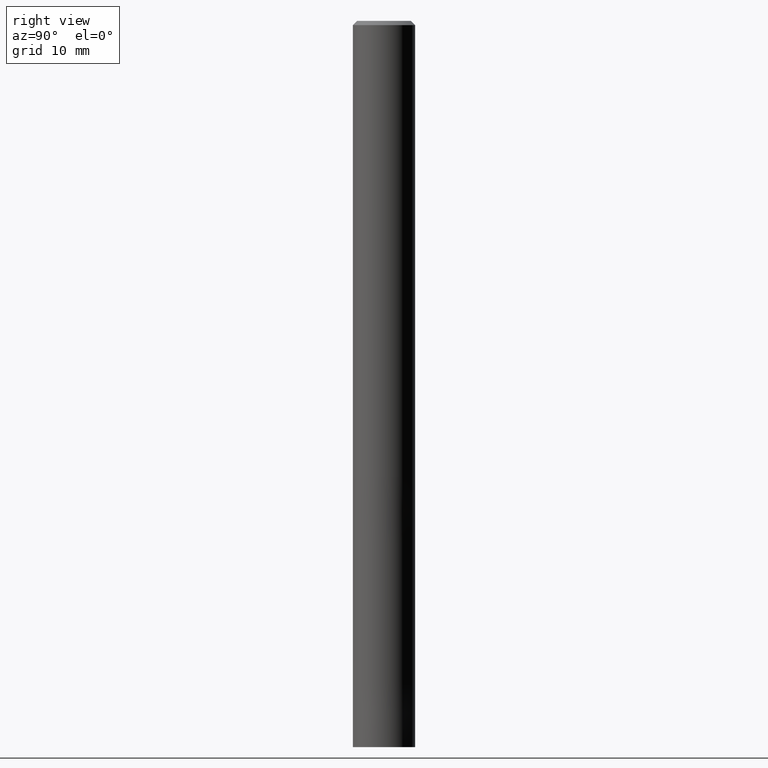
[diagram: clean part render]
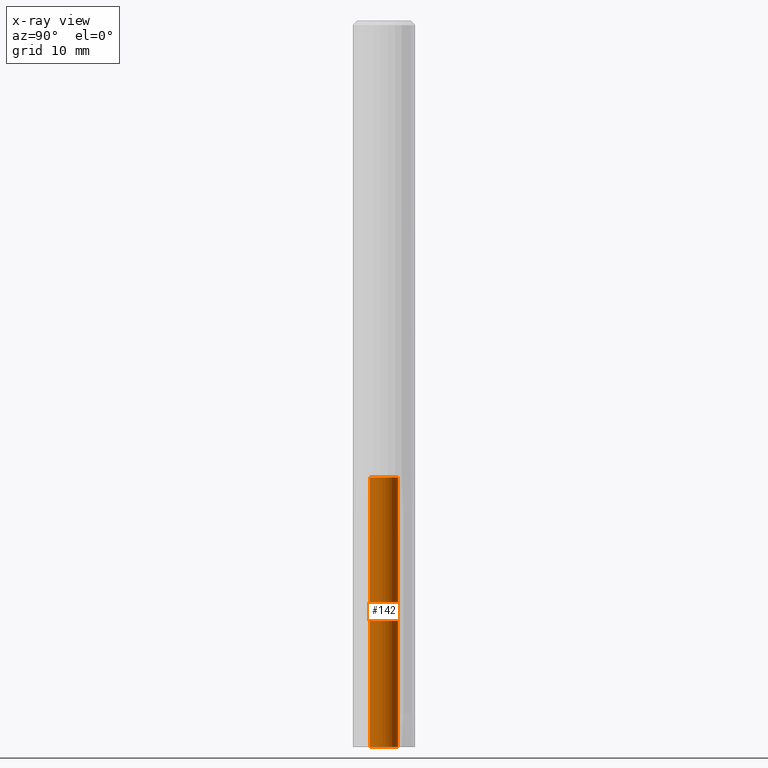
[diagram: x-ray — body ghosted, one internal face saturated and labeled with its STEP entity id]
A machine part, right view, then the same camera in x-ray: the body is ghosted and one INTERNAL B-rep face — a face not visible from any outside direction — is saturated and labeled: STEP entity #142.
In plain terms, the highlighted cylindrical surface (edge-blend (fillet) strip) has radius 1.35 mm, axis along (-0, -0, 1).
Its self-contained STEP definition (entity closure, byte-faithful):
#96=VERTEX_POINT('',#241);
#100=VERTEX_POINT('',#246);
#140=EDGE_CURVE('',#100,#198,#292,.T.);
#142=ADVANCED_FACE('',(#294),#295,.F.);
#156=EDGE_CURVE('',#184,#96,#311,.T.);
#182=EDGE_CURVE('',#100,#96,#340,.T.);
#184=VERTEX_POINT('',#342);
#198=VERTEX_POINT('',#358);
#200=EDGE_CURVE('',#198,#184,#360,.T.);
#241=CARTESIAN_POINT('',(1.65321857766021E-016,-1.35,-44.0));
#246=CARTESIAN_POINT('',(0.0,1.35,-44.0));
#292=LINE('',#459,#460);
#294=FACE_OUTER_BOUND('',#462,.T.);
#295=CYLINDRICAL_SURFACE('',#463,1.35);
#311=LINE('',#488,#489);
#340=CIRCLE('',#524,1.35);
#342=CARTESIAN_POINT('',(1.65321857766021E-016,-1.35,-70.0));
#358=CARTESIAN_POINT('',(0.0,1.35,-70.0));
#360=CIRCLE('',#546,1.35);
#459=CARTESIAN_POINT('',(-1.65321857766021E-016,1.35,-57.0));
#460=VECTOR('',#639,1.0);
#462=EDGE_LOOP('',(#641,#642,#643,#644));
#463=AXIS2_PLACEMENT_3D('',#645,#646,#647);
#488=CARTESIAN_POINT('',(1.65321857766021E-016,-1.35,-57.0));
#489=VECTOR('',#665,1.0);
#524=AXIS2_PLACEMENT_3D('',#702,#703,#704);
#546=AXIS2_PLACEMENT_3D('',#722,#723,#724);
#639=DIRECTION('',(0.0,-0.0,-1.0));
#641=ORIENTED_EDGE('',*,*,#140,.T.);
#642=ORIENTED_EDGE('',*,*,#200,.T.);
#643=ORIENTED_EDGE('',*,*,#156,.T.);
#644=ORIENTED_EDGE('',*,*,#182,.F.);
#645=CARTESIAN_POINT('',(0.0,0.0,-57.0));
#646=DIRECTION('',(-0.0,-0.0,1.0));
#647=DIRECTION('',(0.0,1.0,0.0));
#665=DIRECTION('',(0.0,-0.0,1.0));
#702=CARTESIAN_POINT('',(0.0,0.0,-44.0));
#703=DIRECTION('',(0.0,0.0,-1.0));
#704=DIRECTION('',(0.0,1.0,0.0));
#722=CARTESIAN_POINT('',(0.0,0.0,-70.0));
#723=DIRECTION('',(0.0,0.0,-1.0));
#724=DIRECTION('',(0.0,1.0,0.0));